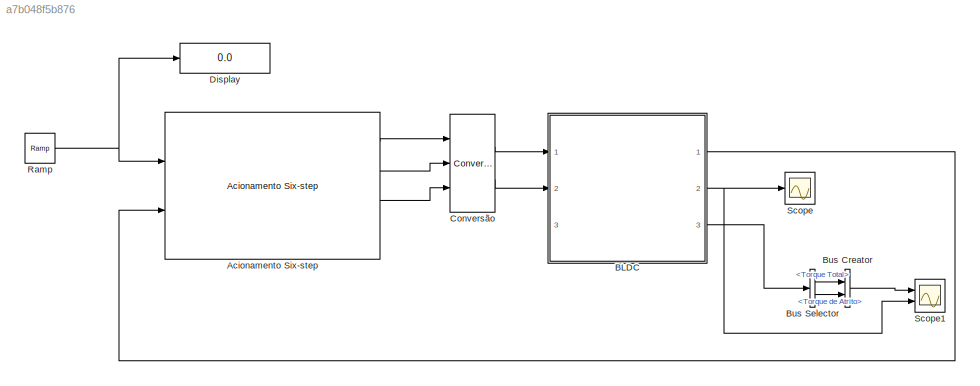
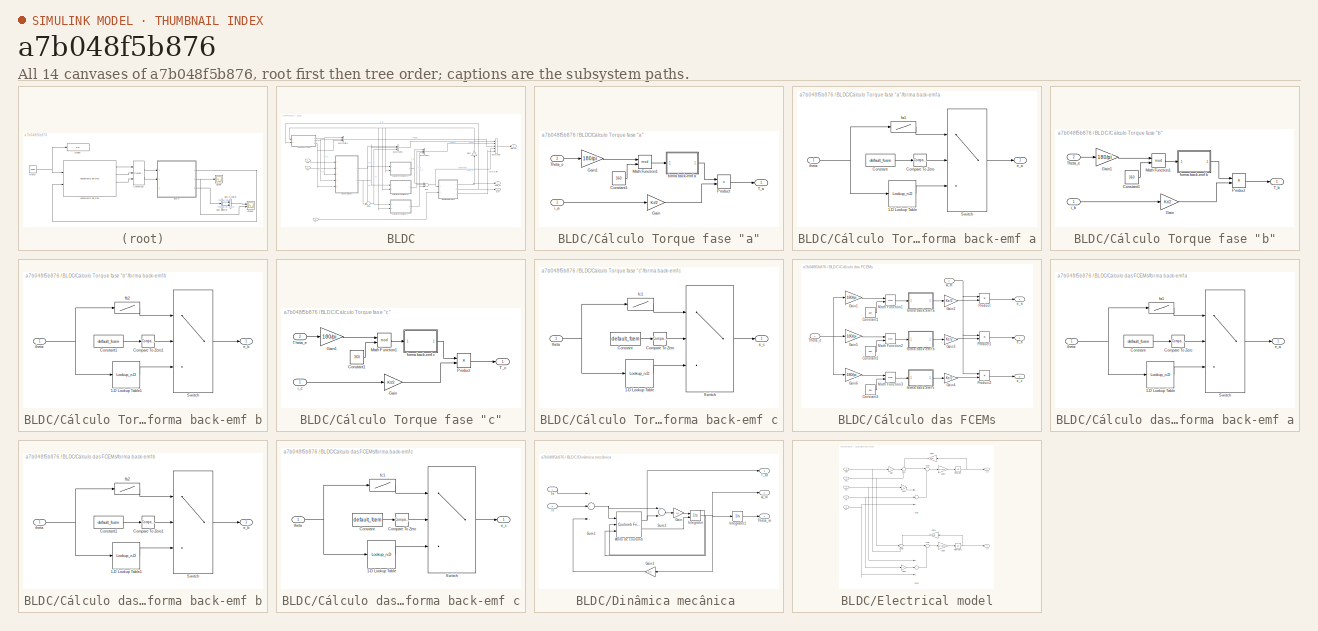
[diagram: thumbnail index - all 14 canvases of the model, root first then tree order]
MODEL slx_a7b048f5b876
KIND model
BLOCK [Reference] Acionamento Six-step  REF=BLDC/Acionamento Six-step
  P = 8
  Ports = [2, 4]
  SourceBlock = BLDC/Acionamento Six-step
  SourceType = Acionamento six-step
BLOCK [SubSystem] BLDC
  FunctionWithSeparateData = off
  MaskHideContents = off
  MinAlgLoopOccurrences = off
  Opaque = off
  Ports = [3, 3]
  PropExecContextOutsideSubsystem = off
  RTWSystemCode = Auto
  RequestExecContextInheritance = off
BLOCK [BusCreator] BLDC/Bus Creator
  DisplayOption = bar
  Inputs = 5
  Ports = [5, 1]
BLOCK [BusCreator] BLDC/Bus Creator1
  DisplayOption = bar
  Inputs = 3
  Ports = [3, 1]
BLOCK [BusCreator] BLDC/Bus Creator2
  DisplayOption = bar
  Inputs = 3
  Ports = [3, 1]
BLOCK [BusCreator] BLDC/Bus Creator3
  DisplayOption = bar
  Inputs = 3
  Ports = [3, 1]
BLOCK [SubSystem] BLDC/Cálculo Torque fase "a"
  FunctionWithSeparateData = off
  MaskHideContents = off
  MinAlgLoopOccurrences = off
  Opaque = off
  Ports = [2, 1]
  PropExecContextOutsideSubsystem = off
  RTWSystemCode = Auto
  RequestExecContextInheritance = off
BLOCK [Constant] BLDC/Cálculo Torque fase "a"/Constant1
  Value = 360
BLOCK [Gain] BLDC/Cálculo Torque fase "a"/Gain
  Gain = Kt/2
  OutDataTypeStr = Inherit: Inherit via internal rule
  ParamDataTypeStr = Inherit: Inherit via internal rule
  SaturateOnIntegerOverflow = off
BLOCK [Gain] BLDC/Cálculo Torque fase "a"/Gain1
  Gain = 180/pi
  OutDataTypeStr = Inherit: Inherit via internal rule
  ParamDataTypeStr = Inherit: Inherit via internal rule
  SaturateOnIntegerOverflow = off
BLOCK [Math] BLDC/Cálculo Torque fase "a"/Math Function1
  Operator = mod
  Ports = [2, 1]
BLOCK [Product] BLDC/Cálculo Torque fase "a"/Product
  InputSameDT = off
  OutDataTypeStr = Inherit: Inherit via internal rule
  Ports = [2, 1]
  SaturateOnIntegerOverflow = off
BLOCK [Outport] BLDC/Cálculo Torque fase "a"/T_a
  IconDisplay = Port number
BLOCK [Inport] BLDC/Cálculo Torque fase "a"/Theta_e
  IconDisplay = Port number
  Port = 2
BLOCK [SubSystem] BLDC/Cálculo Torque fase "a"/forma back-emf a
  FunctionWithSeparateData = off
  MaskHideContents = off
  MinAlgLoopOccurrences = off
  Opaque = off
  Ports = [1, 1]
  PropExecContextOutsideSubsystem = off
  RTWSystemCode = Auto
  RequestExecContextInheritance = off
BLOCK [Lookup_n-D] BLDC/Cálculo Torque fase "a"/forma back-emf a/1-D Lookup Table
  BreakpointsForDimension1 = fcem_a(:,1)
  NumberOfTableDimensions = 1
  Ports = [1, 1]
  RndMeth = Simplest
  Table = fcem_a(:,2)
BLOCK [Reference] BLDC/Cálculo Torque fase "a"/forma back-emf a/Compare To Zero  REF=simulink/Logic and Bit
Operations/Compare
To Zero
  OutDataTypeStr = boolean
  Ports = [1, 1]
  SourceBlock = simulink/Logic and Bit\nOperations/Compare\nTo Zero
  SourceType = Compare To Zero
  ZeroCross = on
  relop = >
BLOCK [Constant] BLDC/Cálculo Torque fase "a"/forma back-emf a/Constant
  Value = default_fcem
BLOCK [Switch] BLDC/Cálculo Torque fase "a"/forma back-emf a/Switch
  InputSameDT = off
  SaturateOnIntegerOverflow = off
BLOCK [Outport] BLDC/Cálculo Torque fase "a"/forma back-emf a/e_a
  IconDisplay = Port number
BLOCK [Lookup] BLDC/Cálculo Torque fase "a"/forma back-emf a/fa1
  InputValues = [0 30 60 90 120 150 180 210 240 270 300 330 360]
  SaturateOnIntegerOverflow = off
  Table = [ 1 1 1 0 -1 -1 -1 -1 -1 0 1 1 1]
BLOCK [Inport] BLDC/Cálculo Torque fase "a"/forma back-emf a/theta
  IconDisplay = Port number
BLOCK [Inport] BLDC/Cálculo Torque fase "a"/i_a
  IconDisplay = Port number
BLOCK [SubSystem] BLDC/Cálculo Torque fase "b"
  FunctionWithSeparateData = off
  MaskHideContents = off
  MinAlgLoopOccurrences = off
  Opaque = off
  Ports = [2, 1]
  PropExecContextOutsideSubsystem = off
  RTWSystemCode = Auto
  RequestExecContextInheritance = off
BLOCK [Constant] BLDC/Cálculo Torque fase "b"/Constant1
  Value = 360
BLOCK [Gain] BLDC/Cálculo Torque fase "b"/Gain
  Gain = Kt/2
  OutDataTypeStr = Inherit: Inherit via internal rule
  ParamDataTypeStr = Inherit: Inherit via internal rule
  SaturateOnIntegerOverflow = off
BLOCK [Gain] BLDC/Cálculo Torque fase "b"/Gain1
  Gain = 180/pi
  OutDataTypeStr = Inherit: Inherit via internal rule
  ParamDataTypeStr = Inherit: Inherit via internal rule
  SaturateOnIntegerOverflow = off
BLOCK [Math] BLDC/Cálculo Torque fase "b"/Math Function1
  Operator = mod
  Ports = [2, 1]
BLOCK [Product] BLDC/Cálculo Torque fase "b"/Product
  InputSameDT = off
  OutDataTypeStr = Inherit: Inherit via internal rule
  Ports = [2, 1]
  SaturateOnIntegerOverflow = off
BLOCK [Outport] BLDC/Cálculo Torque fase "b"/T_b
  IconDisplay = Port number
BLOCK [Inport] BLDC/Cálculo Torque fase "b"/Theta_e
  IconDisplay = Port number
  Port = 2
BLOCK [SubSystem] BLDC/Cálculo Torque fase "b"/forma back-emf b
  FunctionWithSeparateData = off
  MaskHideContents = off
  MinAlgLoopOccurrences = off
  Opaque = off
  Ports = [1, 1]
  PropExecContextOutsideSubsystem = off
  RTWSystemCode = Auto
  RequestExecContextInheritance = off
BLOCK [Lookup_n-D] BLDC/Cálculo Torque fase "b"/forma back-emf b/1-D Lookup Table1
  BreakpointsForDimension1 = fcem_b(:,1)
  NumberOfTableDimensions = 1
  Ports = [1, 1]
  RndMeth = Simplest
  Table = fcem_b(:,2)
BLOCK [Reference] BLDC/Cálculo Torque fase "b"/forma back-emf b/Compare To Zero1  REF=simulink/Logic and Bit
Operations/Compare
To Zero
  OutDataTypeStr = boolean
  Ports = [1, 1]
  SourceBlock = simulink/Logic and Bit\nOperations/Compare\nTo Zero
  SourceType = Compare To Zero
  ZeroCross = on
  relop = >
BLOCK [Constant] BLDC/Cálculo Torque fase "b"/forma back-emf b/Constant1
  Value = default_fcem
BLOCK [Switch] BLDC/Cálculo Torque fase "b"/forma back-emf b/Switch
  InputSameDT = off
  SaturateOnIntegerOverflow = off
BLOCK [Outport] BLDC/Cálculo Torque fase "b"/forma back-emf b/e_b
  IconDisplay = Port number
BLOCK [Lookup] BLDC/Cálculo Torque fase "b"/forma back-emf b/fb2
  InputValues = [0 30 60 90 120 150 180 210 240 270 300 330 360]
  SaturateOnIntegerOverflow = off
  Table = [-1 0 1 1 1 1 1 0 -1 -1 -1 -1 -1]
BLOCK [Inport] BLDC/Cálculo Torque fase "b"/forma back-emf b/theta
  IconDisplay = Port number
BLOCK [Inport] BLDC/Cálculo Torque fase "b"/i_b
  IconDisplay = Port number
BLOCK [SubSystem] BLDC/Cálculo Torque fase "c"
  FunctionWithSeparateData = off
  MaskHideContents = off
  MinAlgLoopOccurrences = off
  Opaque = off
  Ports = [2, 1]
  PropExecContextOutsideSubsystem = off
  RTWSystemCode = Auto
  RequestExecContextInheritance = off
BLOCK [Constant] BLDC/Cálculo Torque fase "c"/Constant1
  Value = 360
BLOCK [Gain] BLDC/Cálculo Torque fase "c"/Gain
  Gain = Kt/2
  OutDataTypeStr = Inherit: Inherit via internal rule
  ParamDataTypeStr = Inherit: Inherit via internal rule
  SaturateOnIntegerOverflow = off
BLOCK [Gain] BLDC/Cálculo Torque fase "c"/Gain1
  Gain = 180/pi
  OutDataTypeStr = Inherit: Inherit via internal rule
  ParamDataTypeStr = Inherit: Inherit via internal rule
  SaturateOnIntegerOverflow = off
BLOCK [Math] BLDC/Cálculo Torque fase "c"/Math Function1
  Operator = mod
  Ports = [2, 1]
BLOCK [Product] BLDC/Cálculo Torque fase "c"/Product
  InputSameDT = off
  OutDataTypeStr = Inherit: Inherit via internal rule
  Ports = [2, 1]
  SaturateOnIntegerOverflow = off
BLOCK [Outport] BLDC/Cálculo Torque fase "c"/T_c
  IconDisplay = Port number
BLOCK [Inport] BLDC/Cálculo Torque fase "c"/Theta_e
  IconDisplay = Port number
  Port = 2
BLOCK [SubSystem] BLDC/Cálculo Torque fase "c"/forma back-emf c
  FunctionWithSeparateData = off
  MaskHideContents = off
  MinAlgLoopOccurrences = off
  Opaque = off
  Ports = [1, 1]
  PropExecContextOutsideSubsystem = off
  RTWSystemCode = Auto
  RequestExecContextInheritance = off
BLOCK [Lookup_n-D] BLDC/Cálculo Torque fase "c"/forma back-emf c/1-D Lookup Table
  BreakpointsForDimension1 = fcem_c(:,1)
  NumberOfTableDimensions = 1
  Ports = [1, 1]
  RndMeth = Simplest
  Table = fcem_c(:,2)
BLOCK [Reference] BLDC/Cálculo Torque fase "c"/forma back-emf c/Compare To Zero  REF=simulink/Logic and Bit
Operations/Compare
To Zero
  OutDataTypeStr = boolean
  Ports = [1, 1]
  SourceBlock = simulink/Logic and Bit\nOperations/Compare\nTo Zero
  SourceType = Compare To Zero
  ZeroCross = on
  relop = >
BLOCK [Constant] BLDC/Cálculo Torque fase "c"/forma back-emf c/Constant
  Value = default_fcem
BLOCK [Switch] BLDC/Cálculo Torque fase "c"/forma back-emf c/Switch
  InputSameDT = off
  SaturateOnIntegerOverflow = off
BLOCK [Outport] BLDC/Cálculo Torque fase "c"/forma back-emf c/e_c
  IconDisplay = Port number
BLOCK [Lookup] BLDC/Cálculo Torque fase "c"/forma back-emf c/fc1
  InputValues = [0 30 60 90 120 150 180 210 240 270 300 330 360]
  SaturateOnIntegerOverflow = off
  Table = [-1 -1 -1 -1 -1 0 1 1 1 1 1 0 -1]
BLOCK [Inport] BLDC/Cálculo Torque fase "c"/forma back-emf c/theta
  IconDisplay = Port number
BLOCK [Inport] BLDC/Cálculo Torque fase "c"/i_c
  IconDisplay = Port number
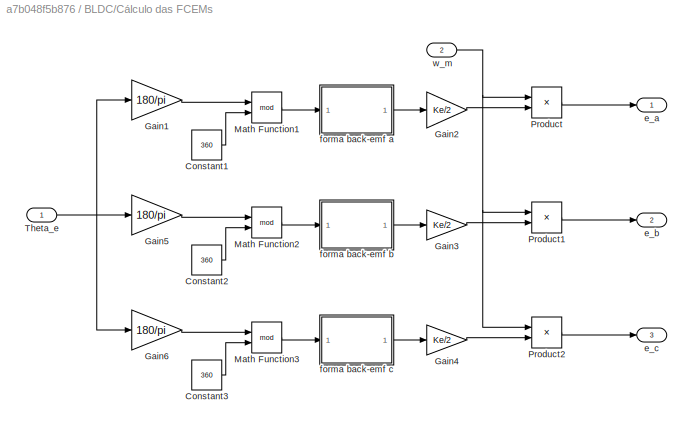
BLOCK [SubSystem] BLDC/Cálculo das FCEMs
  FunctionWithSeparateData = off
  MaskHideContents = off
  MinAlgLoopOccurrences = off
  Opaque = off
  Ports = [2, 3]
  PropExecContextOutsideSubsystem = off
  RTWSystemCode = Auto
  RequestExecContextInheritance = off
BLOCK [Constant] BLDC/Cálculo das FCEMs/Constant1
  Value = 360
BLOCK [Constant] BLDC/Cálculo das FCEMs/Constant2
  Value = 360
BLOCK [Constant] BLDC/Cálculo das FCEMs/Constant3
  Value = 360
BLOCK [Gain] BLDC/Cálculo das FCEMs/Gain1
  Gain = 180/pi
  OutDataTypeStr = Inherit: Inherit via internal rule
  ParamDataTypeStr = Inherit: Inherit via internal rule
  SaturateOnIntegerOverflow = off
BLOCK [Gain] BLDC/Cálculo das FCEMs/Gain2
  Gain = Ke/2
  OutDataTypeStr = Inherit: Inherit via internal rule
  ParamDataTypeStr = Inherit: Inherit via internal rule
  SaturateOnIntegerOverflow = off
BLOCK [Gain] BLDC/Cálculo das FCEMs/Gain3
  Gain = Ke/2
  OutDataTypeStr = Inherit: Inherit via internal rule
  ParamDataTypeStr = Inherit: Inherit via internal rule
  SaturateOnIntegerOverflow = off
BLOCK [Gain] BLDC/Cálculo das FCEMs/Gain4
  Gain = Ke/2
  OutDataTypeStr = Inherit: Inherit via internal rule
  ParamDataTypeStr = Inherit: Inherit via internal rule
  SaturateOnIntegerOverflow = off
BLOCK [Gain] BLDC/Cálculo das FCEMs/Gain5
  Gain = 180/pi
  OutDataTypeStr = Inherit: Inherit via internal rule
  ParamDataTypeStr = Inherit: Inherit via internal rule
  SaturateOnIntegerOverflow = off
BLOCK [Gain] BLDC/Cálculo das FCEMs/Gain6
  Gain = 180/pi
  OutDataTypeStr = Inherit: Inherit via internal rule
  ParamDataTypeStr = Inherit: Inherit via internal rule
  SaturateOnIntegerOverflow = off
BLOCK [Math] BLDC/Cálculo das FCEMs/Math Function1
  Operator = mod
  Ports = [2, 1]
BLOCK [Math] BLDC/Cálculo das FCEMs/Math Function2
  Operator = mod
  Ports = [2, 1]
BLOCK [Math] BLDC/Cálculo das FCEMs/Math Function3
  Operator = mod
  Ports = [2, 1]
BLOCK [Product] BLDC/Cálculo das FCEMs/Product
  InputSameDT = off
  OutDataTypeStr = Inherit: Inherit via internal rule
  Ports = [2, 1]
  SaturateOnIntegerOverflow = off
BLOCK [Product] BLDC/Cálculo das FCEMs/Product1
  InputSameDT = off
  OutDataTypeStr = Inherit: Inherit via internal rule
  Ports = [2, 1]
  SaturateOnIntegerOverflow = off
BLOCK [Product] BLDC/Cálculo das FCEMs/Product2
  InputSameDT = off
  OutDataTypeStr = Inherit: Inherit via internal rule
  Ports = [2, 1]
  SaturateOnIntegerOverflow = off
BLOCK [Inport] BLDC/Cálculo das FCEMs/Theta_e
  IconDisplay = Port number
BLOCK [Outport] BLDC/Cálculo das FCEMs/e_a
  IconDisplay = Port number
BLOCK [Outport] BLDC/Cálculo das FCEMs/e_b
  IconDisplay = Port number
  Port = 2
BLOCK [Outport] BLDC/Cálculo das FCEMs/e_c
  IconDisplay = Port number
  Port = 3
BLOCK [SubSystem] BLDC/Cálculo das FCEMs/forma back-emf a
  FunctionWithSeparateData = off
  MaskHideContents = off
  MinAlgLoopOccurrences = off
  Opaque = off
  Ports = [1, 1]
  PropExecContextOutsideSubsystem = off
  RTWSystemCode = Auto
  RequestExecContextInheritance = off
BLOCK [Lookup_n-D] BLDC/Cálculo das FCEMs/forma back-emf a/1-D Lookup Table
  BreakpointsForDimension1 = fcem_a(:,1)
  NumberOfTableDimensions = 1
  Ports = [1, 1]
  RndMeth = Simplest
  Table = fcem_a(:,2)
BLOCK [Reference] BLDC/Cálculo das FCEMs/forma back-emf a/Compare To Zero  REF=simulink/Logic and Bit
Operations/Compare
To Zero
  OutDataTypeStr = boolean
  Ports = [1, 1]
  SourceBlock = simulink/Logic and Bit\nOperations/Compare\nTo Zero
  SourceType = Compare To Zero
  ZeroCross = on
  relop = >
BLOCK [Constant] BLDC/Cálculo das FCEMs/forma back-emf a/Constant
  Value = default_fcem
BLOCK [Switch] BLDC/Cálculo das FCEMs/forma back-emf a/Switch
  InputSameDT = off
  SaturateOnIntegerOverflow = off
BLOCK [Outport] BLDC/Cálculo das FCEMs/forma back-emf a/e_a
  IconDisplay = Port number
BLOCK [Lookup] BLDC/Cálculo das FCEMs/forma back-emf a/fa1
  InputValues = [0 30 60 90 120 150 180 210 240 270 300 330 360]
  SaturateOnIntegerOverflow = off
  Table = [ 1 1 1 0 -1 -1 -1 -1 -1 0 1 1 1]
BLOCK [Inport] BLDC/Cálculo das FCEMs/forma back-emf a/theta
  IconDisplay = Port number
BLOCK [SubSystem] BLDC/Cálculo das FCEMs/forma back-emf b
  FunctionWithSeparateData = off
  MaskHideContents = off
  MinAlgLoopOccurrences = off
  Opaque = off
  Ports = [1, 1]
  PropExecContextOutsideSubsystem = off
  RTWSystemCode = Auto
  RequestExecContextInheritance = off
BLOCK [Lookup_n-D] BLDC/Cálculo das FCEMs/forma back-emf b/1-D Lookup Table1
  BreakpointsForDimension1 = fcem_b(:,1)
  NumberOfTableDimensions = 1
  Ports = [1, 1]
  RndMeth = Simplest
  Table = fcem_b(:,2)
BLOCK [Reference] BLDC/Cálculo das FCEMs/forma back-emf b/Compare To Zero1  REF=simulink/Logic and Bit
Operations/Compare
To Zero
  OutDataTypeStr = boolean
  Ports = [1, 1]
  SourceBlock = simulink/Logic and Bit\nOperations/Compare\nTo Zero
  SourceType = Compare To Zero
  ZeroCross = on
  relop = >
BLOCK [Constant] BLDC/Cálculo das FCEMs/forma back-emf b/Constant1
  Value = default_fcem
BLOCK [Switch] BLDC/Cálculo das FCEMs/forma back-emf b/Switch
  InputSameDT = off
  SaturateOnIntegerOverflow = off
BLOCK [Outport] BLDC/Cálculo das FCEMs/forma back-emf b/e_b
  IconDisplay = Port number
BLOCK [Lookup] BLDC/Cálculo das FCEMs/forma back-emf b/fb2
  InputValues = [0 30 60 90 120 150 180 210 240 270 300 330 360]
  SaturateOnIntegerOverflow = off
  Table = [-1 0 1 1 1 1 1 0 -1 -1 -1 -1 -1]
BLOCK [Inport] BLDC/Cálculo das FCEMs/forma back-emf b/theta
  IconDisplay = Port number
BLOCK [SubSystem] BLDC/Cálculo das FCEMs/forma back-emf c
  FunctionWithSeparateData = off
  MaskHideContents = off
  MinAlgLoopOccurrences = off
  Opaque = off
  Ports = [1, 1]
  PropExecContextOutsideSubsystem = off
  RTWSystemCode = Auto
  RequestExecContextInheritance = off
BLOCK [Lookup_n-D] BLDC/Cálculo das FCEMs/forma back-emf c/1-D Lookup Table
  BreakpointsForDimension1 = fcem_c(:,1)
  NumberOfTableDimensions = 1
  Ports = [1, 1]
  RndMeth = Simplest
  Table = fcem_c(:,2)
BLOCK [Reference] BLDC/Cálculo das FCEMs/forma back-emf c/Compare To Zero  REF=simulink/Logic and Bit
Operations/Compare
To Zero
  OutDataTypeStr = boolean
  Ports = [1, 1]
  SourceBlock = simulink/Logic and Bit\nOperations/Compare\nTo Zero
  SourceType = Compare To Zero
  ZeroCross = on
  relop = >
BLOCK [Constant] BLDC/Cálculo das FCEMs/forma back-emf c/Constant
  Value = default_fcem
BLOCK [Switch] BLDC/Cálculo das FCEMs/forma back-emf c/Switch
  InputSameDT = off
  SaturateOnIntegerOverflow = off
BLOCK [Outport] BLDC/Cálculo das FCEMs/forma back-emf c/e_c
  IconDisplay = Port number
BLOCK [Lookup] BLDC/Cálculo das FCEMs/forma back-emf c/fc1
  InputValues = [0 30 60 90 120 150 180 210 240 270 300 330 360]
  SaturateOnIntegerOverflow = off
  Table = [-1 -1 -1 -1 -1 0 1 1 1 1 1 0 -1]
BLOCK [Inport] BLDC/Cálculo das FCEMs/forma back-emf c/theta
  IconDisplay = Port number
BLOCK [Inport] BLDC/Cálculo das FCEMs/w_m
  IconDisplay = Port number
  Port = 2
BLOCK [SubSystem] BLDC/Dinâmica mecânica 
  FunctionWithSeparateData = off
  MaskHideContents = off
  MinAlgLoopOccurrences = off
  Opaque = off
  Ports = [2, 3]
  PropExecContextOutsideSubsystem = off
  RTWSystemCode = Auto
  RequestExecContextInheritance = off
BLOCK [Reference] BLDC/Dinâmica mecânica /Atrito de coulomb  REF=Tools/Coulomb Friction
  F_slip = F_slip
  F_stick = F_stick
  Ports = [3, 2]
  SourceBlock = Tools/Coulomb Friction
  SourceType = Modelo de atrito de Coulomb
BLOCK [Gain] BLDC/Dinâmica mecânica /Gain
  Gain = 1/J
  OutDataTypeStr = Inherit: Inherit via internal rule
  ParamDataTypeStr = Inherit: Inherit via internal rule
  SaturateOnIntegerOverflow = off
BLOCK [Gain] BLDC/Dinâmica mecânica /Gain1
  Gain = Kd
  OutDataTypeStr = Inherit: Inherit via internal rule
  ParamDataTypeStr = Inherit: Inherit via internal rule
  SaturateOnIntegerOverflow = off
BLOCK [Integrator] BLDC/Dinâmica mecânica /Integrator
  ExternalReset = rising
  Ports = [2, 1, 0, 0, 1]
  ShowStatePort = on
BLOCK [Integrator] BLDC/Dinâmica mecânica /Integrator1
  Ports = [1, 1]
BLOCK [Sum] BLDC/Dinâmica mecânica /Sum1
  InputSameDT = off
  Inputs = +--
  OutDataTypeStr = Inherit: Inherit via internal rule
  Ports = [3, 1]
  SaturateOnIntegerOverflow = off
BLOCK [Sum] BLDC/Dinâmica mecânica /Sum2
  InputSameDT = off
  Inputs = +-
  OutDataTypeStr = Inherit: Inherit via internal rule
  Ports = [2, 1]
  SaturateOnIntegerOverflow = off
BLOCK [Outport] BLDC/Dinâmica mecânica /T_at
  IconDisplay = Port number
  Port = 3
BLOCK [Inport] BLDC/Dinâmica mecânica /Te
  IconDisplay = Port number
BLOCK [Outport] BLDC/Dinâmica mecânica /Theta_m
  IconDisplay = Port number
BLOCK [Inport] BLDC/Dinâmica mecânica /Tl
  IconDisplay = Port number
  Port = 2
BLOCK [Outport] BLDC/Dinâmica mecânica /w_m
  IconDisplay = Port number
  Port = 2
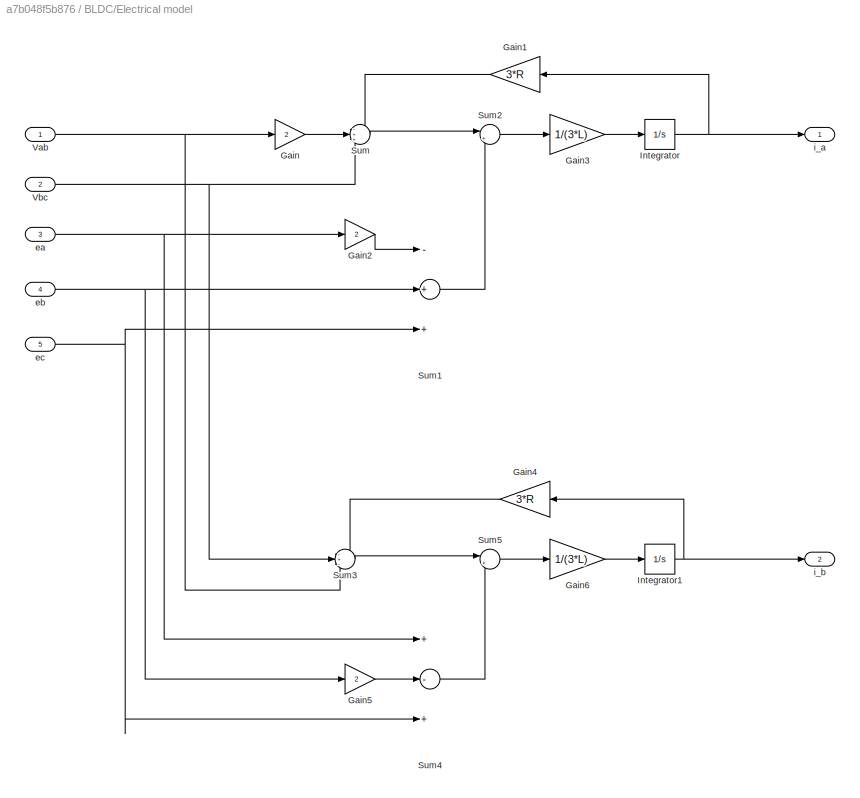
BLOCK [SubSystem] BLDC/Electrical model
  FunctionWithSeparateData = off
  MaskHideContents = off
  MinAlgLoopOccurrences = off
  Opaque = off
  Ports = [5, 2]
  PropExecContextOutsideSubsystem = off
  RTWSystemCode = Auto
  RequestExecContextInheritance = off
BLOCK [Gain] BLDC/Electrical model/Gain
  Gain = 2
  OutDataTypeStr = Inherit: Inherit via internal rule
  ParamDataTypeStr = Inherit: Inherit via internal rule
  SaturateOnIntegerOverflow = off
BLOCK [Gain] BLDC/Electrical model/Gain1
  Gain = 3*R
  OutDataTypeStr = Inherit: Inherit via internal rule
  ParamDataTypeStr = Inherit: Inherit via internal rule
  SaturateOnIntegerOverflow = off
BLOCK [Gain] BLDC/Electrical model/Gain2
  Gain = 2
  OutDataTypeStr = Inherit: Inherit via internal rule
  ParamDataTypeStr = Inherit: Inherit via internal rule
  SaturateOnIntegerOverflow = off
BLOCK [Gain] BLDC/Electrical model/Gain3
  Gain = 1/(3*L)
  OutDataTypeStr = Inherit: Inherit via internal rule
  ParamDataTypeStr = Inherit: Inherit via internal rule
  SaturateOnIntegerOverflow = off
BLOCK [Gain] BLDC/Electrical model/Gain4
  Gain = 3*R
  OutDataTypeStr = Inherit: Inherit via internal rule
  ParamDataTypeStr = Inherit: Inherit via internal rule
  SaturateOnIntegerOverflow = off
BLOCK [Gain] BLDC/Electrical model/Gain5
  Gain = 2
  OutDataTypeStr = Inherit: Inherit via internal rule
  ParamDataTypeStr = Inherit: Inherit via internal rule
  SaturateOnIntegerOverflow = off
BLOCK [Gain] BLDC/Electrical model/Gain6
  Gain = 1/(3*L)
  OutDataTypeStr = Inherit: Inherit via internal rule
  ParamDataTypeStr = Inherit: Inherit via internal rule
  SaturateOnIntegerOverflow = off
BLOCK [Integrator] BLDC/Electrical model/Integrator
  Ports = [1, 1]
BLOCK [Integrator] BLDC/Electrical model/Integrator1
  Ports = [1, 1]
BLOCK [Sum] BLDC/Electrical model/Sum
  IconShape = round
  InputSameDT = off
  Inputs = -++
  OutDataTypeStr = Inherit: Inherit via internal rule
  Ports = [3, 1]
  SaturateOnIntegerOverflow = off
BLOCK [Sum] BLDC/Electrical model/Sum1
  InputSameDT = off
  Inputs = -++
  OutDataTypeStr = Inherit: Inherit via internal rule
  Ports = [3, 1]
  SaturateOnIntegerOverflow = off
BLOCK [Sum] BLDC/Electrical model/Sum2
  IconShape = round
  InputSameDT = off
  Inputs = |++
  OutDataTypeStr = Inherit: Inherit via internal rule
  Ports = [2, 1]
  SaturateOnIntegerOverflow = off
BLOCK [Sum] BLDC/Electrical model/Sum3
  IconShape = round
  InputSameDT = off
  Inputs = -+-
  OutDataTypeStr = Inherit: Inherit via internal rule
  Ports = [3, 1]
  SaturateOnIntegerOverflow = off
BLOCK [Sum] BLDC/Electrical model/Sum4
  InputSameDT = off
  Inputs = +-+
  OutDataTypeStr = Inherit: Inherit via internal rule
  Ports = [3, 1]
  SaturateOnIntegerOverflow = off
BLOCK [Sum] BLDC/Electrical model/Sum5
  IconShape = round
  InputSameDT = off
  Inputs = |++
  OutDataTypeStr = Inherit: Inherit via internal rule
  Ports = [2, 1]
  SaturateOnIntegerOverflow = off
BLOCK [Inport] BLDC/Electrical model/Vab
  IconDisplay = Port number
BLOCK [Inport] BLDC/Electrical model/Vbc
  IconDisplay = Port number
  Port = 2
BLOCK [Inport] BLDC/Electrical model/ea
  IconDisplay = Port number
  Port = 3
BLOCK [Inport] BLDC/Electrical model/eb
  IconDisplay = Port number
  Port = 4
BLOCK [Inport] BLDC/Electrical model/ec
  IconDisplay = Port number
  Port = 5
BLOCK [Outport] BLDC/Electrical model/i_a
  IconDisplay = Port number
BLOCK [Outport] BLDC/Electrical model/i_b
  IconDisplay = Port number
  Port = 2
BLOCK [Gain] BLDC/Gain2
  Gain = P/2
  OutDataTypeStr = Inherit: Inherit via internal rule
  ParamDataTypeStr = Inherit: Inherit via internal rule
  SaturateOnIntegerOverflow = off
BLOCK [Sum] BLDC/Sum
  InputSameDT = off
  Inputs = +++
  OutDataTypeStr = Inherit: Inherit via internal rule
  Ports = [3, 1]
  SaturateOnIntegerOverflow = off
BLOCK [Sum] BLDC/Sum1
  IconShape = round
  InputSameDT = off
  Inputs = --|
  OutDataTypeStr = Inherit: Inherit via internal rule
  Ports = [2, 1]
  SaturateOnIntegerOverflow = off
BLOCK [Inport] BLDC/Tl
  IconDisplay = Port number
  Port = 3
BLOCK [Inport] BLDC/Vab
  IconDisplay = Port number
BLOCK [Inport] BLDC/Vbc
  IconDisplay = Port number
  Port = 2
BLOCK [Outport] BLDC/internal
  IconDisplay = Port number
  Port = 3
BLOCK [Outport] BLDC/theta_m
  IconDisplay = Port number
BLOCK [Outport] BLDC/w_m
  IconDisplay = Port number
  Port = 2
BLOCK [BusCreator] Bus Creator
  DisplayOption = bar
  Inputs = 2
  Ports = [2, 1]
BLOCK [BusSelector] Bus Selector
  OutputSignals = Torque Total,Torque de Atrito
  Ports = [1, 2]
BLOCK [Reference] Conversão  REF=BLDC/Conversão
  Ports = [3, 2]
  SourceBlock = BLDC/Conversão
  SourceType = SubSystem
BLOCK [Display] Display
  Decimation = 1
  Lockdown = off
  Ports = [1]
BLOCK [Reference] Ramp  REF=simulink/Sources/Ramp
  Ports = [0, 1]
  SourceBlock = simulink/Sources/Ramp
  SourceType = Ramp
  VectorParams1D = on
  X0 = 0
  slope = 1
  start = 0
BLOCK [Scope] Scope
  DataFormat = StructureWithTime
  Floating = off
  LimitDataPoints = off
  NumInputPorts = 1
  Ports = [1]
  SampleTime = 0
  ShowLegends = off
BLOCK [Scope] Scope1
  DataFormat = StructureWithTime
  Floating = off
  LegendLocations = 0.90825     0.92617    0.076042    0.036327\n0.92543     0.46569    0.058854    0.020518
  LimitDataPoints = off
  NumInputPorts = 2
  Ports = [2]
  SampleTime = 0
  SaveName = ScopeData1
  ShowLegends = on
  YMax = 5~40
  YMin = -5~-1
LINE Acionamento Six-step:1 -> Conversão:1
LINE Acionamento Six-step:2 -> Conversão:2
LINE Acionamento Six-step:3 -> Conversão:3
LINE BLDC/Bus Creator1:1 -> BLDC/Bus Creator:2
LINE BLDC/Bus Creator2:1 -> BLDC/Bus Creator:1
LINE BLDC/Bus Creator3:1 -> BLDC/Bus Creator:3
LINE BLDC/Bus Creator:1 -> BLDC/internal:1
LINE BLDC/Cálculo Torque fase "a"/Constant1:1 -> BLDC/Cálculo Torque fase "a"/Math Function1:2
LINE BLDC/Cálculo Torque fase "a"/Gain1:1 -> BLDC/Cálculo Torque fase "a"/Math Function1:1
LINE BLDC/Cálculo Torque fase "a"/Gain:1 -> BLDC/Cálculo Torque fase "a"/Product:2
LINE BLDC/Cálculo Torque fase "a"/Math Function1:1 -> BLDC/Cálculo Torque fase "a"/forma back-emf a:1
LINE BLDC/Cálculo Torque fase "a"/Product:1 -> BLDC/Cálculo Torque fase "a"/T_a:1
LINE BLDC/Cálculo Torque fase "a"/Theta_e:1 -> BLDC/Cálculo Torque fase "a"/Gain1:1
LINE BLDC/Cálculo Torque fase "a"/forma back-emf a/1-D Lookup Table:1 -> BLDC/Cálculo Torque fase "a"/forma back-emf a/Switch:3
LINE BLDC/Cálculo Torque fase "a"/forma back-emf a/Compare To Zero:1 -> BLDC/Cálculo Torque fase "a"/forma back-emf a/Switch:2
LINE BLDC/Cálculo Torque fase "a"/forma back-emf a/Constant:1 -> BLDC/Cálculo Torque fase "a"/forma back-emf a/Compare To Zero:1
LINE BLDC/Cálculo Torque fase "a"/forma back-emf a/Switch:1 -> BLDC/Cálculo Torque fase "a"/forma back-emf a/e_a:1
LINE BLDC/Cálculo Torque fase "a"/forma back-emf a/fa1:1 -> BLDC/Cálculo Torque fase "a"/forma back-emf a/Switch:1
NET BLDC/Cálculo Torque fase "a"/forma back-emf a/theta:1 -> BLDC/Cálculo Torque fase "a"/forma back-emf a/1-D Lookup Table:1, BLDC/Cálculo Torque fase "a"/forma back-emf a/fa1:1
LINE BLDC/Cálculo Torque fase "a"/forma back-emf a:1 -> BLDC/Cálculo Torque fase "a"/Product:1
LINE BLDC/Cálculo Torque fase "a"/i_a:1 -> BLDC/Cálculo Torque fase "a"/Gain:1
NET BLDC/Cálculo Torque fase "a":1 -> BLDC/Bus Creator1:1, BLDC/Sum:1
LINE BLDC/Cálculo Torque fase "b"/Constant1:1 -> BLDC/Cálculo Torque fase "b"/Math Function1:2
LINE BLDC/Cálculo Torque fase "b"/Gain1:1 -> BLDC/Cálculo Torque fase "b"/Math Function1:1
LINE BLDC/Cálculo Torque fase "b"/Gain:1 -> BLDC/Cálculo Torque fase "b"/Product:2
LINE BLDC/Cálculo Torque fase "b"/Math Function1:1 -> BLDC/Cálculo Torque fase "b"/forma back-emf b:1
LINE BLDC/Cálculo Torque fase "b"/Product:1 -> BLDC/Cálculo Torque fase "b"/T_b:1
LINE BLDC/Cálculo Torque fase "b"/Theta_e:1 -> BLDC/Cálculo Torque fase "b"/Gain1:1
LINE BLDC/Cálculo Torque fase "b"/forma back-emf b/1-D Lookup Table1:1 -> BLDC/Cálculo Torque fase "b"/forma back-emf b/Switch:3
LINE BLDC/Cálculo Torque fase "b"/forma back-emf b/Compare To Zero1:1 -> BLDC/Cálculo Torque fase "b"/forma back-emf b/Switch:2
LINE BLDC/Cálculo Torque fase "b"/forma back-emf b/Constant1:1 -> BLDC/Cálculo Torque fase "b"/forma back-emf b/Compare To Zero1:1
LINE BLDC/Cálculo Torque fase "b"/forma back-emf b/Switch:1 -> BLDC/Cálculo Torque fase "b"/forma back-emf b/e_b:1
LINE BLDC/Cálculo Torque fase "b"/forma back-emf b/fb2:1 -> BLDC/Cálculo Torque fase "b"/forma back-emf b/Switch:1
NET BLDC/Cálculo Torque fase "b"/forma back-emf b/theta:1 -> BLDC/Cálculo Torque fase "b"/forma back-emf b/1-D Lookup Table1:1, BLDC/Cálculo Torque fase "b"/forma back-emf b/fb2:1
LINE BLDC/Cálculo Torque fase "b"/forma back-emf b:1 -> BLDC/Cálculo Torque fase "b"/Product:1
LINE BLDC/Cálculo Torque fase "b"/i_b:1 -> BLDC/Cálculo Torque fase "b"/Gain:1
NET BLDC/Cálculo Torque fase "b":1 -> BLDC/Bus Creator1:2, BLDC/Sum:2
LINE BLDC/Cálculo Torque fase "c"/Constant1:1 -> BLDC/Cálculo Torque fase "c"/Math Function1:2
LINE BLDC/Cálculo Torque fase "c"/Gain1:1 -> BLDC/Cálculo Torque fase "c"/Math Function1:1
LINE BLDC/Cálculo Torque fase "c"/Gain:1 -> BLDC/Cálculo Torque fase "c"/Product:2
LINE BLDC/Cálculo Torque fase "c"/Math Function1:1 -> BLDC/Cálculo Torque fase "c"/forma back-emf c:1
LINE BLDC/Cálculo Torque fase "c"/Product:1 -> BLDC/Cálculo Torque fase "c"/T_c:1
LINE BLDC/Cálculo Torque fase "c"/Theta_e:1 -> BLDC/Cálculo Torque fase "c"/Gain1:1
LINE BLDC/Cálculo Torque fase "c"/forma back-emf c/1-D Lookup Table:1 -> BLDC/Cálculo Torque fase "c"/forma back-emf c/Switch:3
LINE BLDC/Cálculo Torque fase "c"/forma back-emf c/Compare To Zero:1 -> BLDC/Cálculo Torque fase "c"/forma back-emf c/Switch:2
LINE BLDC/Cálculo Torque fase "c"/forma back-emf c/Constant:1 -> BLDC/Cálculo Torque fase "c"/forma back-emf c/Compare To Zero:1
LINE BLDC/Cálculo Torque fase "c"/forma back-emf c/Switch:1 -> BLDC/Cálculo Torque fase "c"/forma back-emf c/e_c:1
LINE BLDC/Cálculo Torque fase "c"/forma back-emf c/fc1:1 -> BLDC/Cálculo Torque fase "c"/forma back-emf c/Switch:1
NET BLDC/Cálculo Torque fase "c"/forma back-emf c/theta:1 -> BLDC/Cálculo Torque fase "c"/forma back-emf c/1-D Lookup Table:1, BLDC/Cálculo Torque fase "c"/forma back-emf c/fc1:1
LINE BLDC/Cálculo Torque fase "c"/forma back-emf c:1 -> BLDC/Cálculo Torque fase "c"/Product:1
LINE BLDC/Cálculo Torque fase "c"/i_c:1 -> BLDC/Cálculo Torque fase "c"/Gain:1
NET BLDC/Cálculo Torque fase "c":1 -> BLDC/Bus Creator1:3, BLDC/Sum:3
LINE BLDC/Cálculo das FCEMs/Constant1:1 -> BLDC/Cálculo das FCEMs/Math Function1:2
LINE BLDC/Cálculo das FCEMs/Constant2:1 -> BLDC/Cálculo das FCEMs/Math Function2:2
LINE BLDC/Cálculo das FCEMs/Constant3:1 -> BLDC/Cálculo das FCEMs/Math Function3:2
LINE BLDC/Cálculo das FCEMs/Gain1:1 -> BLDC/Cálculo das FCEMs/Math Function1:1
LINE BLDC/Cálculo das FCEMs/Gain2:1 -> BLDC/Cálculo das FCEMs/Product:2
LINE BLDC/Cálculo das FCEMs/Gain3:1 -> BLDC/Cálculo das FCEMs/Product1:2
LINE BLDC/Cálculo das FCEMs/Gain4:1 -> BLDC/Cálculo das FCEMs/Product2:2
LINE BLDC/Cálculo das FCEMs/Gain5:1 -> BLDC/Cálculo das FCEMs/Math Function2:1
LINE BLDC/Cálculo das FCEMs/Gain6:1 -> BLDC/Cálculo das FCEMs/Math Function3:1
LINE BLDC/Cálculo das FCEMs/Math Function1:1 -> BLDC/Cálculo das FCEMs/forma back-emf a:1
LINE BLDC/Cálculo das FCEMs/Math Function2:1 -> BLDC/Cálculo das FCEMs/forma back-emf b:1
LINE BLDC/Cálculo das FCEMs/Math Function3:1 -> BLDC/Cálculo das FCEMs/forma back-emf c:1
LINE BLDC/Cálculo das FCEMs/Product1:1 -> BLDC/Cálculo das FCEMs/e_b:1
LINE BLDC/Cálculo das FCEMs/Product2:1 -> BLDC/Cálculo das FCEMs/e_c:1
LINE BLDC/Cálculo das FCEMs/Product:1 -> BLDC/Cálculo das FCEMs/e_a:1
NET BLDC/Cálculo das FCEMs/Theta_e:1 -> BLDC/Cálculo das FCEMs/Gain1:1, BLDC/Cálculo das FCEMs/Gain5:1, BLDC/Cálculo das FCEMs/Gain6:1
LINE BLDC/Cálculo das FCEMs/forma back-emf a/1-D Lookup Table:1 -> BLDC/Cálculo das FCEMs/forma back-emf a/Switch:3
LINE BLDC/Cálculo das FCEMs/forma back-emf a/Compare To Zero:1 -> BLDC/Cálculo das FCEMs/forma back-emf a/Switch:2
LINE BLDC/Cálculo das FCEMs/forma back-emf a/Constant:1 -> BLDC/Cálculo das FCEMs/forma back-emf a/Compare To Zero:1
LINE BLDC/Cálculo das FCEMs/forma back-emf a/Switch:1 -> BLDC/Cálculo das FCEMs/forma back-emf a/e_a:1
LINE BLDC/Cálculo das FCEMs/forma back-emf a/fa1:1 -> BLDC/Cálculo das FCEMs/forma back-emf a/Switch:1
NET BLDC/Cálculo das FCEMs/forma back-emf a/theta:1 -> BLDC/Cálculo das FCEMs/forma back-emf a/1-D Lookup Table:1, BLDC/Cálculo das FCEMs/forma back-emf a/fa1:1
LINE BLDC/Cálculo das FCEMs/forma back-emf a:1 -> BLDC/Cálculo das FCEMs/Gain2:1
LINE BLDC/Cálculo das FCEMs/forma back-emf b/1-D Lookup Table1:1 -> BLDC/Cálculo das FCEMs/forma back-emf b/Switch:3
LINE BLDC/Cálculo das FCEMs/forma back-emf b/Compare To Zero1:1 -> BLDC/Cálculo das FCEMs/forma back-emf b/Switch:2
LINE BLDC/Cálculo das FCEMs/forma back-emf b/Constant1:1 -> BLDC/Cálculo das FCEMs/forma back-emf b/Compare To Zero1:1
LINE BLDC/Cálculo das FCEMs/forma back-emf b/Switch:1 -> BLDC/Cálculo das FCEMs/forma back-emf b/e_b:1
LINE BLDC/Cálculo das FCEMs/forma back-emf b/fb2:1 -> BLDC/Cálculo das FCEMs/forma back-emf b/Switch:1
NET BLDC/Cálculo das FCEMs/forma back-emf b/theta:1 -> BLDC/Cálculo das FCEMs/forma back-emf b/1-D Lookup Table1:1, BLDC/Cálculo das FCEMs/forma back-emf b/fb2:1
LINE BLDC/Cálculo das FCEMs/forma back-emf b:1 -> BLDC/Cálculo das FCEMs/Gain3:1
LINE BLDC/Cálculo das FCEMs/forma back-emf c/1-D Lookup Table:1 -> BLDC/Cálculo das FCEMs/forma back-emf c/Switch:3
LINE BLDC/Cálculo das FCEMs/forma back-emf c/Compare To Zero:1 -> BLDC/Cálculo das FCEMs/forma back-emf c/Switch:2
LINE BLDC/Cálculo das FCEMs/forma back-emf c/Constant:1 -> BLDC/Cálculo das FCEMs/forma back-emf c/Compare To Zero:1
LINE BLDC/Cálculo das FCEMs/forma back-emf c/Switch:1 -> BLDC/Cálculo das FCEMs/forma back-emf c/e_c:1
LINE BLDC/Cálculo das FCEMs/forma back-emf c/fc1:1 -> BLDC/Cálculo das FCEMs/forma back-emf c/Switch:1
NET BLDC/Cálculo das FCEMs/forma back-emf c/theta:1 -> BLDC/Cálculo das FCEMs/forma back-emf c/1-D Lookup Table:1, BLDC/Cálculo das FCEMs/forma back-emf c/fc1:1
LINE BLDC/Cálculo das FCEMs/forma back-emf c:1 -> BLDC/Cálculo das FCEMs/Gain4:1
NET BLDC/Cálculo das FCEMs/w_m:1 -> BLDC/Cálculo das FCEMs/Product1:1, BLDC/Cálculo das FCEMs/Product2:1, BLDC/Cálculo das FCEMs/Product:1
NET BLDC/Cálculo das FCEMs:1 -> BLDC/Bus Creator3:1, BLDC/Electrical model:3
NET BLDC/Cálculo das FCEMs:2 -> BLDC/Bus Creator3:2, BLDC/Electrical model:4
NET BLDC/Cálculo das FCEMs:3 -> BLDC/Bus Creator3:3, BLDC/Electrical model:5
NET BLDC/Dinâmica mecânica /Atrito de coulomb:1 -> BLDC/Dinâmica mecânica /Sum2:2, BLDC/Dinâmica mecânica /T_at:1
LINE BLDC/Dinâmica mecânica /Atrito de coulomb:2 -> BLDC/Dinâmica mecânica /Integrator:2
LINE BLDC/Dinâmica mecânica /Gain1:1 -> BLDC/Dinâmica mecânica /Sum1:3
LINE BLDC/Dinâmica mecânica /Gain:1 -> BLDC/Dinâmica mecânica /Integrator:1
LINE BLDC/Dinâmica mecânica /Integrator1:1 -> BLDC/Dinâmica mecânica /Theta_m:1
NET BLDC/Dinâmica mecânica /Integrator:1 -> BLDC/Dinâmica mecânica /Atrito de coulomb:3, BLDC/Dinâmica mecânica /Gain1:1, BLDC/Dinâmica mecânica /Integrator1:1, BLDC/Dinâmica mecânica /w_m:1
LINE BLDC/Dinâmica mecânica /Integrator:state -> BLDC/Dinâmica mecânica /Atrito de coulomb:2
NET BLDC/Dinâmica mecânica /Sum1:1 -> BLDC/Dinâmica mecânica /Atrito de coulomb:1, BLDC/Dinâmica mecânica /Sum2:1
LINE BLDC/Dinâmica mecânica /Sum2:1 -> BLDC/Dinâmica mecânica /Gain:1
LINE BLDC/Dinâmica mecânica /Te:1 -> BLDC/Dinâmica mecânica /Sum1:1
LINE BLDC/Dinâmica mecânica /Tl:1 -> BLDC/Dinâmica mecânica /Sum1:2
NET BLDC/Dinâmica mecânica :1 -> BLDC/Gain2:1, BLDC/theta_m:1
NET BLDC/Dinâmica mecânica :2 -> BLDC/Cálculo das FCEMs:2, BLDC/w_m:1
LINE BLDC/Dinâmica mecânica :3 -> BLDC/Bus Creator:5
LINE BLDC/Electrical model/Gain1:1 -> BLDC/Electrical model/Sum:1
LINE BLDC/Electrical model/Gain2:1 -> BLDC/Electrical model/Sum1:1
LINE BLDC/Electrical model/Gain3:1 -> BLDC/Electrical model/Integrator:1
LINE BLDC/Electrical model/Gain4:1 -> BLDC/Electrical model/Sum3:1
LINE BLDC/Electrical model/Gain5:1 -> BLDC/Electrical model/Sum4:2
LINE BLDC/Electrical model/Gain6:1 -> BLDC/Electrical model/Integrator1:1
LINE BLDC/Electrical model/Gain:1 -> BLDC/Electrical model/Sum:2
NET BLDC/Electrical model/Integrator1:1 -> BLDC/Electrical model/Gain4:1, BLDC/Electrical model/i_b:1
NET BLDC/Electrical model/Integrator:1 -> BLDC/Electrical model/Gain1:1, BLDC/Electrical model/i_a:1
LINE BLDC/Electrical model/Sum1:1 -> BLDC/Electrical model/Sum2:2
LINE BLDC/Electrical model/Sum2:1 -> BLDC/Electrical model/Gain3:1
LINE BLDC/Electrical model/Sum3:1 -> BLDC/Electrical model/Sum5:1
LINE BLDC/Electrical model/Sum4:1 -> BLDC/Electrical model/Sum5:2
LINE BLDC/Electrical model/Sum5:1 -> BLDC/Electrical model/Gain6:1
LINE BLDC/Electrical model/Sum:1 -> BLDC/Electrical model/Sum2:1
NET BLDC/Electrical model/Vab:1 -> BLDC/Electrical model/Gain:1, BLDC/Electrical model/Sum3:3
NET BLDC/Electrical model/Vbc:1 -> BLDC/Electrical model/Sum3:2, BLDC/Electrical model/Sum:3
NET BLDC/Electrical model/ea:1 -> BLDC/Electrical model/Gain2:1, BLDC/Electrical model/Sum4:1
NET BLDC/Electrical model/eb:1 -> BLDC/Electrical model/Gain5:1, BLDC/Electrical model/Sum1:2
NET BLDC/Electrical model/ec:1 -> BLDC/Electrical model/Sum1:3, BLDC/Electrical model/Sum4:3
NET BLDC/Electrical model:1 -> BLDC/Bus Creator2:1, BLDC/Cálculo Torque fase "a":1, BLDC/Sum1:1
NET BLDC/Electrical model:2 -> BLDC/Bus Creator2:2, BLDC/Cálculo Torque fase "b":1, BLDC/Sum1:2
NET BLDC/Gain2:1 -> BLDC/Cálculo Torque fase "a":2, BLDC/Cálculo Torque fase "b":2, BLDC/Cálculo Torque fase "c":2, BLDC/Cálculo das FCEMs:1
NET BLDC/Sum1:1 -> BLDC/Bus Creator2:3, BLDC/Cálculo Torque fase "c":1
NET BLDC/Sum:1 -> BLDC/Bus Creator:4, BLDC/Dinâmica mecânica :1
LINE BLDC/Tl:1 -> BLDC/Dinâmica mecânica :2
LINE BLDC/Vab:1 -> BLDC/Electrical model:1
LINE BLDC/Vbc:1 -> BLDC/Electrical model:2
LINE BLDC:1 -> Acionamento Six-step:2
NET BLDC:2 -> Scope1:2, Scope:1
LINE BLDC:3 -> Bus Selector:1
LINE Bus Creator:1 -> Scope1:1
LINE Bus Selector:1 -> Bus Creator:1
LINE Bus Selector:2 -> Bus Creator:2
LINE Conversão:1 -> BLDC:1
LINE Conversão:2 -> BLDC:2
NET Ramp:1 -> Acionamento Six-step:1, Display:1
note: NET lines group one-source signal fan-out (src -> all destinations, sorted); 1:1 wires keep LINE
